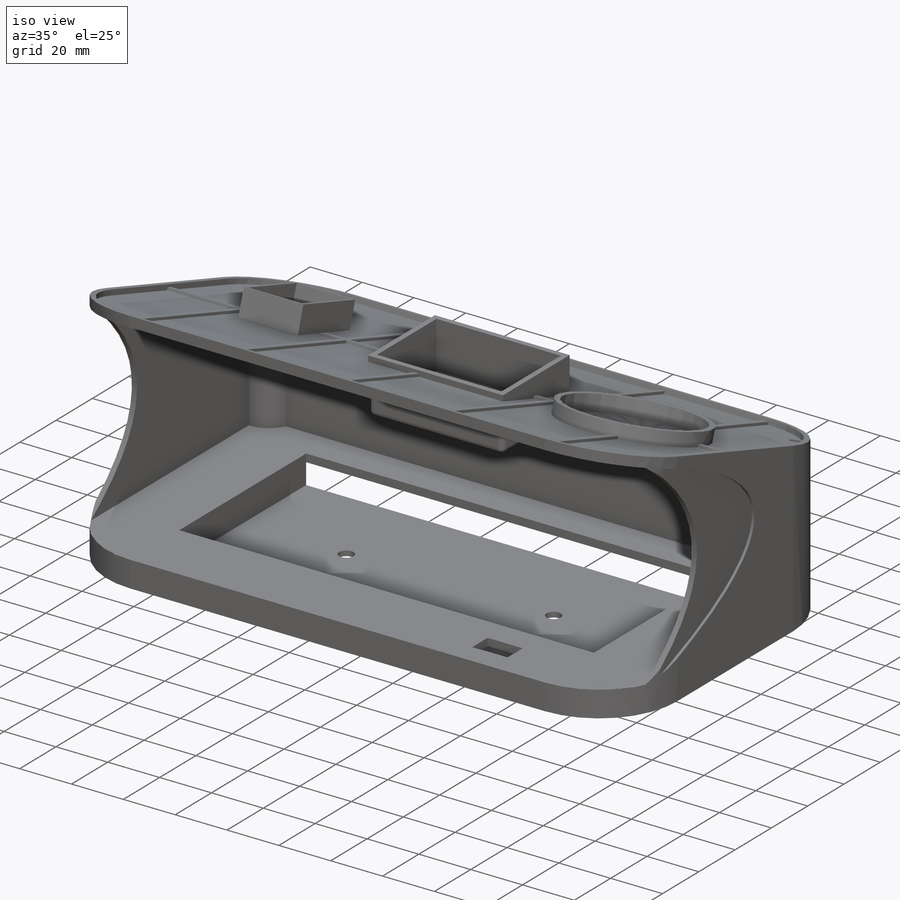
[diagram: iso view]
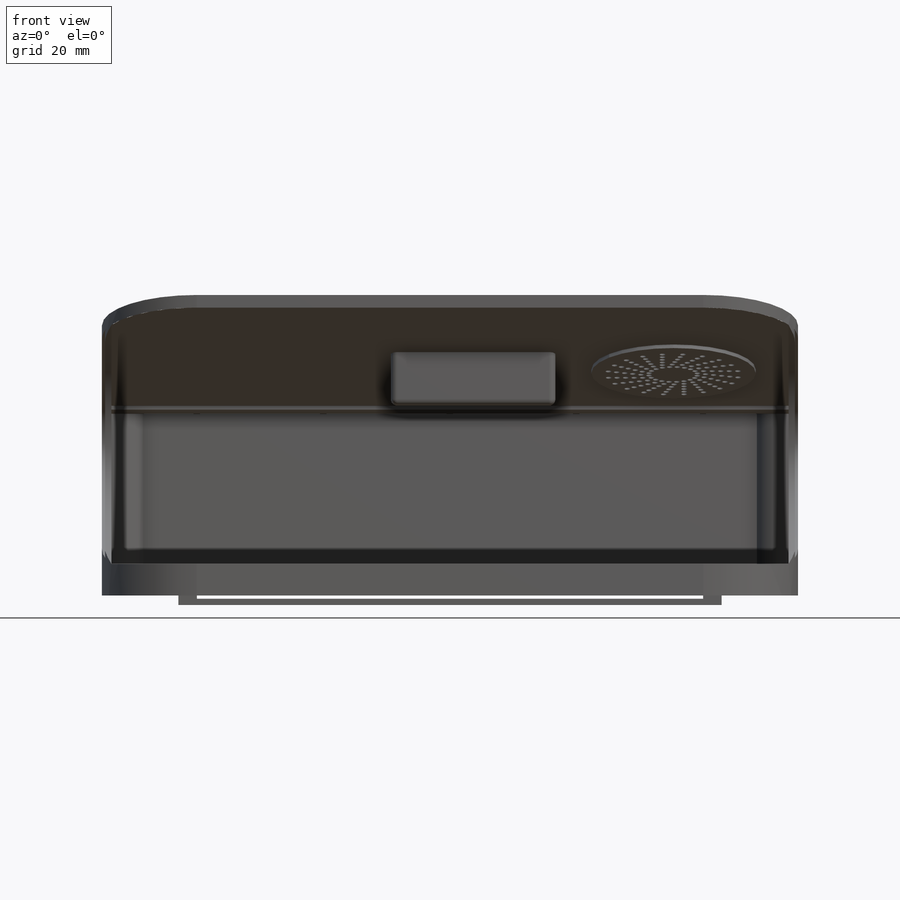
[diagram: front view]
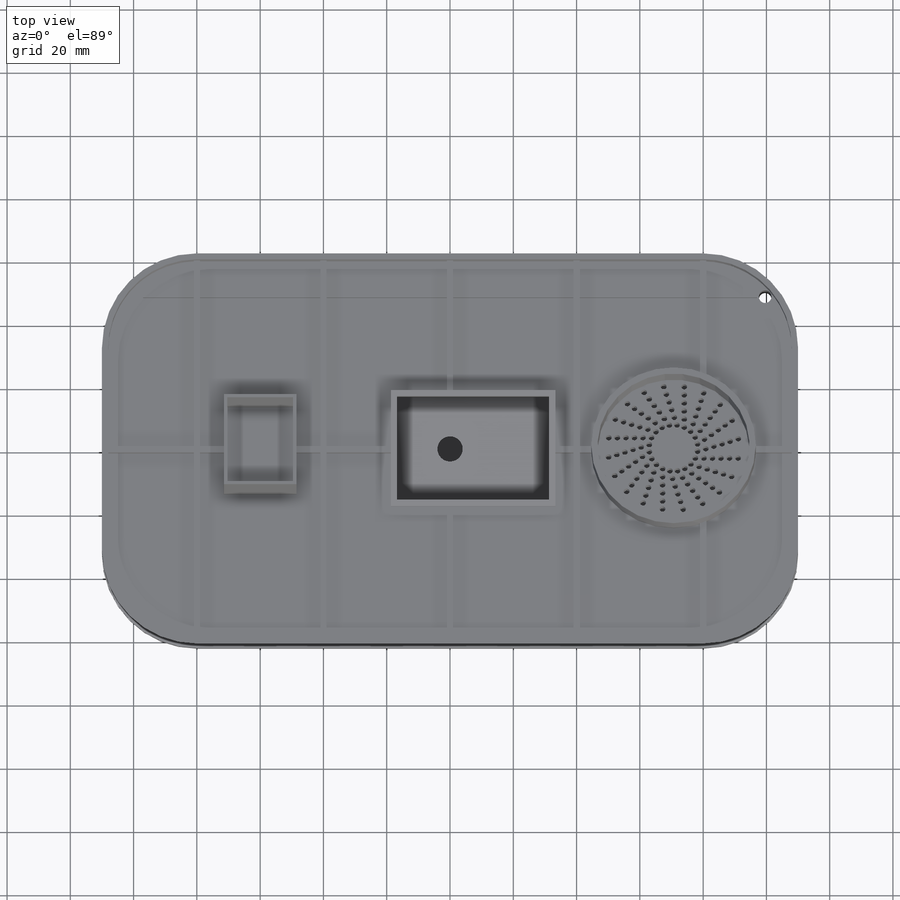
[diagram: top view]
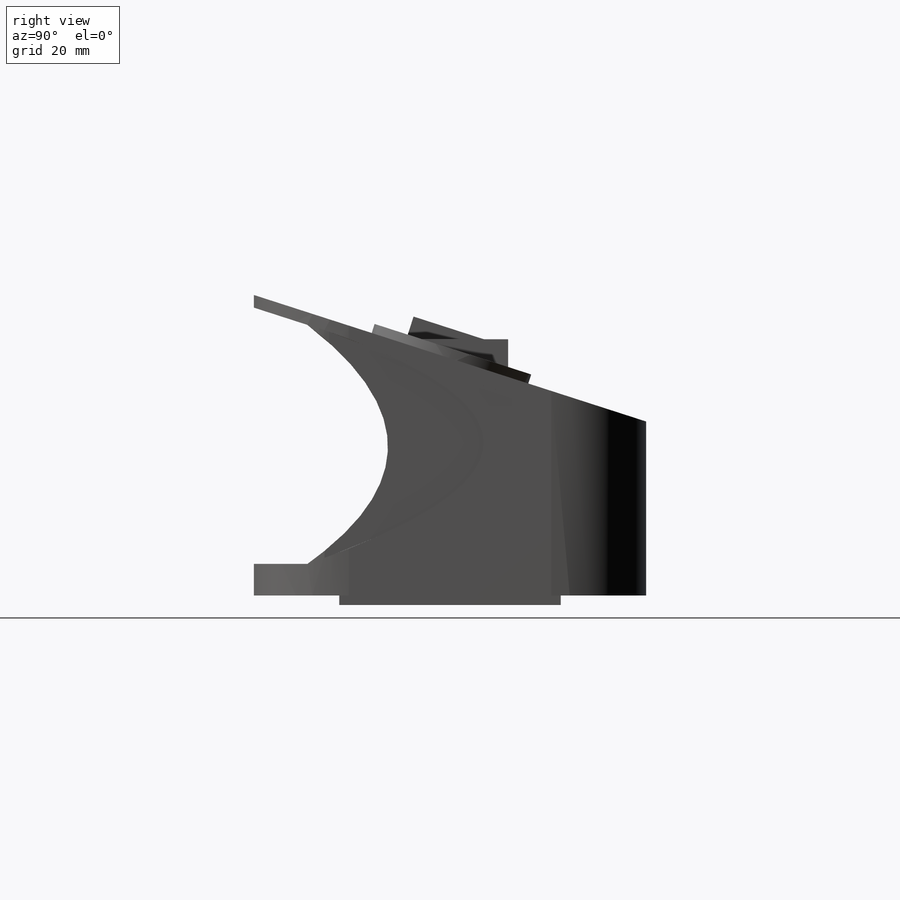
[diagram: right view]
SOLIDWORKS PART (.sldprt)
format: sldprt  version: not decoded by parser v0  size: 1,286,144 bytes
history: native  units: mm
features: sketch x28, cut_extrude x21, extrude x7, fillet x4, plane x3, material x1 (+13 scaffold rows collapsed)
feature tree (77):
  scaffold x13  (default folders/planes/origin — collapsed)
  material  "Material <not specified>"
  sketch  "Sketch1"  dims[D3=30.0mm D4=30.0mm D1=220.0mm D2=124.0mm]
  extrude  "Boss-Extrude1"  Depth=95mm
  sketch  "Sketch2"  dims[c1.D1=10.0mm c1.D2=35.0mm c2.D1=3.0mm]
  cut_extrude  "Cut-Extrude1"  Depth=100mm
  sketch  "Sketch3"  dims[D1=2.0mm]
  cut_extrude  "Cut-Extrude2"  Depth=7mm
  sketch  "Sketch4"  dims[D1=40.0mm]
  cut_extrude  "Cut-Extrude3"  Depth=232mm
  sketch  "Sketch5"  dims[D1=4.0mm D2=20.0mm]
  cut_extrude  "Cut-Extrude4"  Depth=232mm
  sketch  "Sketch9"  dims[D1=2.0mm]
  cut_extrude  "Cut-Extrude6"  Depth=2mm
  plane  "Plane2"  Offset=3mm
  sketch  "Sketch10"  dims[D1=4.0mm D2=20.0mm]
  cut_extrude  "Cut-Extrude7"  Depth=214mm
  sketch  "Sketch11"
  cut_extrude  "Cut-Extrude8"  Depth=231mm
  sketch  "Sketch14"  dims[D1=5.0mm D2=5.0mm]
  cut_extrude  "Cut-Extrude9"  Depth=231mm
  sketch  "Sketch15"  dims[D1=30.0mm]
  cut_extrude  "Cut-Extrude14"  Depth=1mm
  fillet  "Fillet1"  Radius=10mm
  sketch  "Sketch16"  dims[D1=30.0mm]
  cut_extrude  "Cut-Extrude15"  Depth=1mm
  fillet  "Fillet2"  Radius=10mm
  sketch  "Sketch17"  dims[D1=10.0mm]
  cut_extrude  "Cut-Extrude16"  Depth=6mm
  fillet  "Fillet3"  Radius=10mm
  plane  "Plane5"  Offset=1mm
  sketch  "Sketch34"  dims[D1=1.0mm D2=1.0mm]
  extrude  "Boss-Extrude2"  Depth=1mm
  sketch  "Sketch35"  dims[D1=35.0mm D2=80.0mm]
  cut_extrude  "Cut-Extrude17"  Depth=10mm
  plane  "Plane6"  Offset=50mm
  sketch  "Sketch36"  dims[D1=30.0mm D2=40.0mm]
  extrude  "Boss-Extrude3"  Depth=21mm
  sketch  "Sketch37"  dims[D1=2.0mm]
  cut_extrude  "Cut-Extrude18"  Depth=18mm
  sketch  "Sketch38"  dims[D1=8.0mm]
  cut_extrude  "Cut-Extrude19"  Depth=21mm
  sketch  "Sketch39"  dims[D1=52.0mm]
  extrude  "Boss-Extrude4"  Depth=8mm
  sketch  "Sketch40"  dims[D1=2.0mm]
  cut_extrude  "Cut-Extrude20"  Depth=6mm
  sketch  "Sketch41"  dims[D2=20.0]
  cut_extrude  "Cut-Extrude21"  Depth=6mm
  sketch  "Sketch42"  dims[D1=8.5mm D2=13.6mm]
  cut_extrude  "Cut-Extrude22"  Depth=6mm
  fillet  "Fillet6"  Radius=2mm
  sketch  "Sketch44"  dims[D1=4.0mm]
  cut_extrude  "Cut-Extrude23"  Depth=125mm
  sketch  "Sketch45"  dims[D1=23.0mm D2=30.0mm]
  extrude  "Boss-Extrude5"  Depth=10mm
  sketch  "Sketch46"  dims[D1=20.8mm D2=28.0mm]
  cut_extrude  "Cut-Extrude24"  Depth=9.8mm
  sketch  "Sketch47"  dims[D1=160.0mm]
  extrude  "Boss-Extrude6"  Depth=10mm
  sketch  "Sketch50"  dims[D1=5.5mm]
  cut_extrude  "Cut-Extrude27"  Depth=6.1mm
  sketch  "Sketch51"
  cut_extrude  "Cut-Extrude28"  Depth=8mm
  sketch  "Sketch52"
  extrude  "Boss-Extrude7"  Depth=10mm
decode coverage: 57 of 60 modeling features carry decoded parameters
note: suppression state not decoded; provenance and decode notes live in map.json
